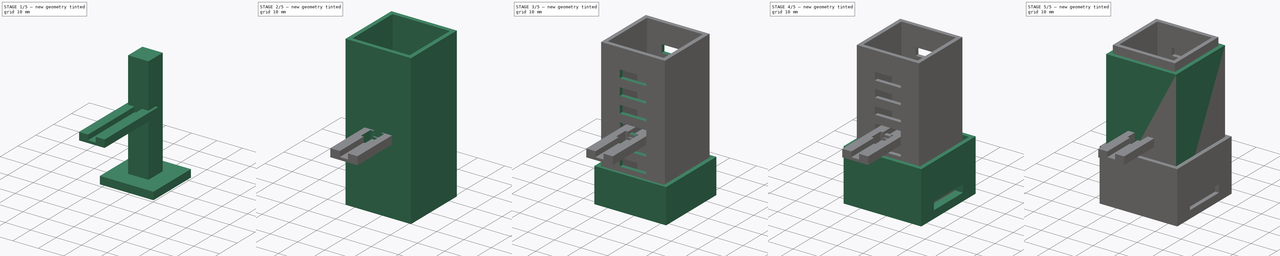
[diagram: build sequence overview — one tinted view per stage of 5, left to right]
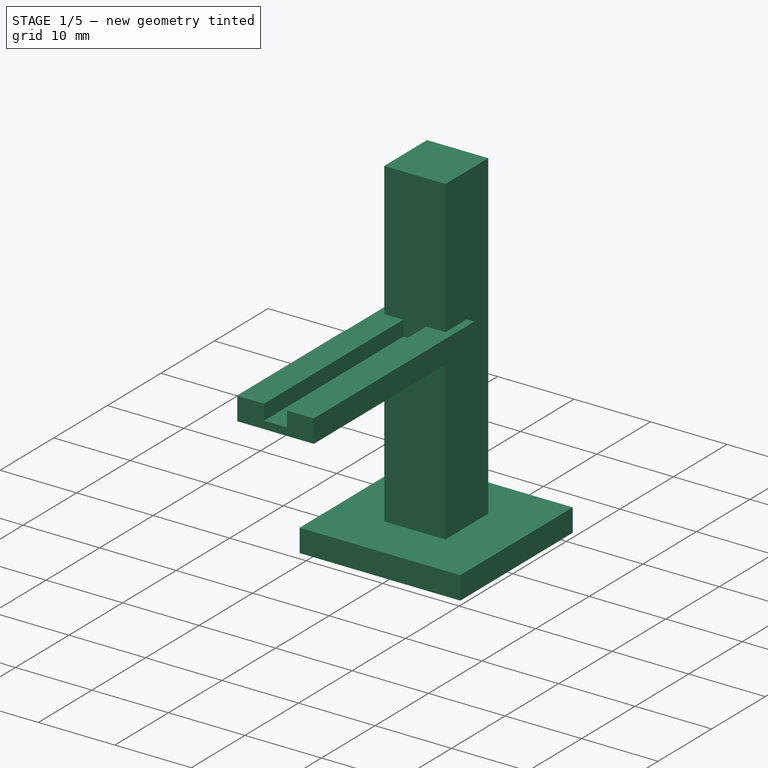
[diagram: stage 1 of 5 — iso view after this stage's code; geometry added in this stage tinted green]
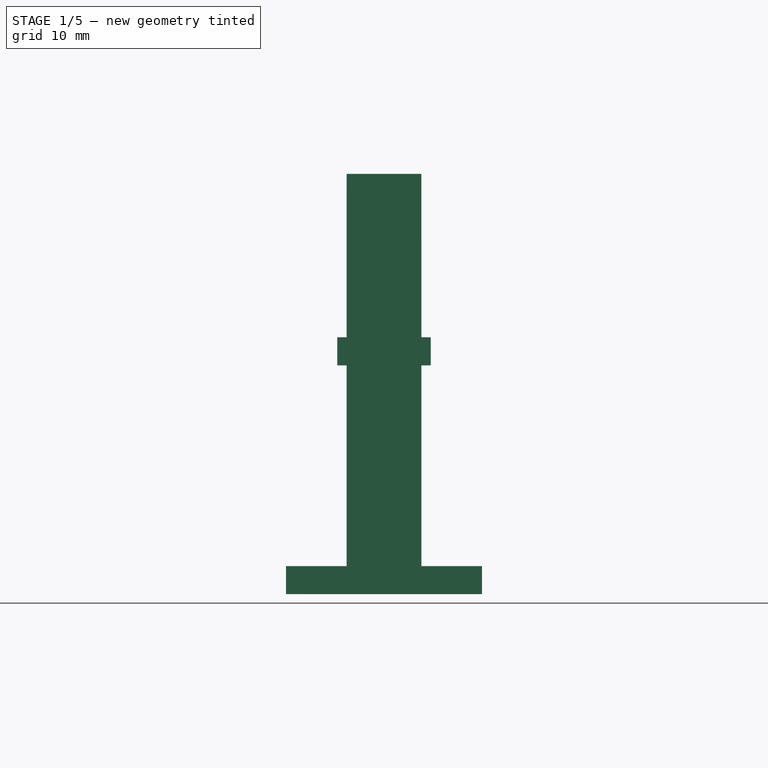
[diagram: stage 1 of 5 — front view after this stage's code; geometry added in this stage tinted green]
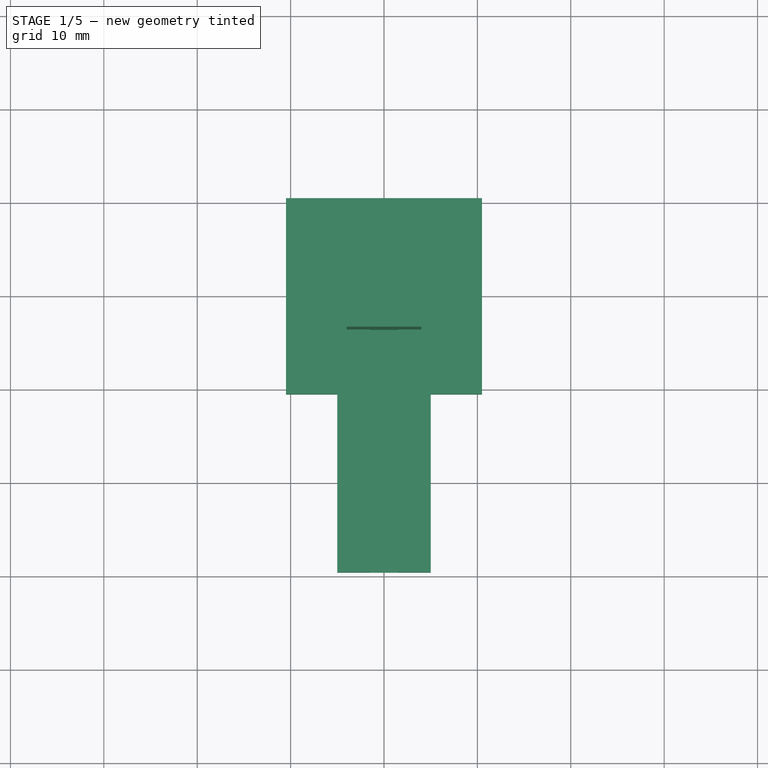
[diagram: stage 1 of 5 — top view after this stage's code; geometry added in this stage tinted green]
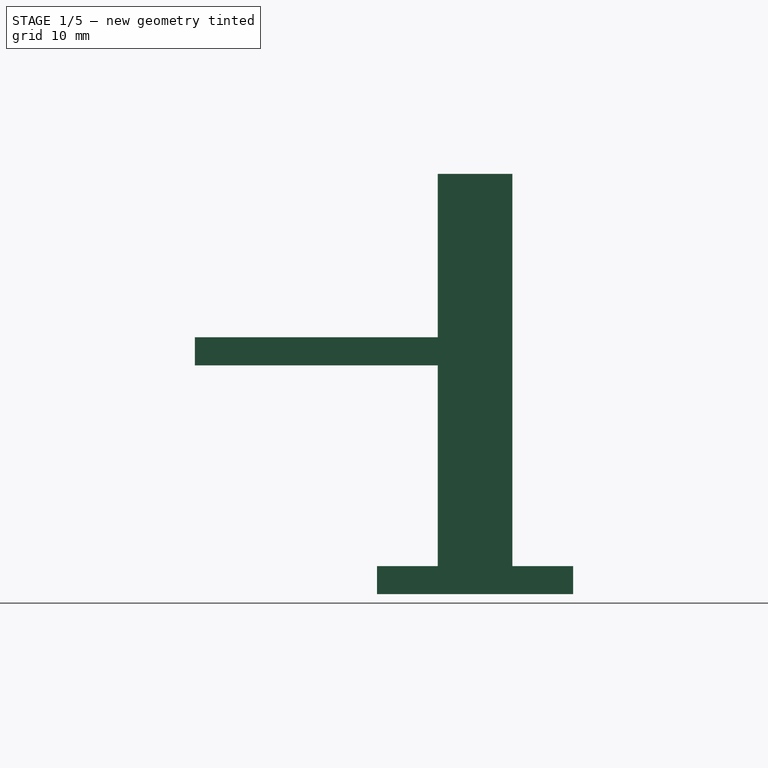
[diagram: stage 1 of 5 — right view after this stage's code; geometry added in this stage tinted green]
FCSTD DOCUMENT  (FreeCAD 0.21R33668 +26 (Git))
Label: gehäuse
License: All rights reserved
LicenseURL: http://en.wikipedia.org/wiki/All_rights_reserved
objects: Sketcher::SketchObject×14, PartDesign::Pad×11, PartDesign::Body×5, PartDesign::Pocket×3, PartDesign::LinearPattern×1
note: 48 computed .brp shape members not serialized (recipe doc carries the construction recipe); baked Part::Feature solids carry a one-line shape summary decoded from their .brp

FEATURE [PartDesign::Body] Body002  label="Raster"
  Group = -> [Sketch007,Pad006,Sketch008,Pad007,Sketch009,Pocket001,LinearPattern]
  Origin = -> Origin002
  Placement = pos=(0,0,20.5) rot=(0,0,1;0rad)
  Tip = -> LinearPattern
FEATURE [Sketcher::SketchObject] Sketch010
  FullyConstrained = true
  MapMode = 5
  Placement = pos=(0,0,0) rot=(1,0,0;1.5708rad)
  Support = -> [XZ_Plane003]
  sketch-geometry (10):
    g0: LineSegment StartX=-5 StartY=24.5 StartZ=0 EndX=-5 EndY=27.5 EndZ=0
    g1: LineSegment StartX=5 StartY=27.5 StartZ=0 EndX=5 EndY=24.5 EndZ=0
    g2: LineSegment StartX=5 StartY=24.5 StartZ=0 EndX=-5 EndY=24.5 EndZ=0
    g3: GeomPoint X=0 Y=26 Z=0
    g4: LineSegment StartX=-1.5 StartY=25.5 StartZ=0 EndX=-1.5 EndY=27.5 EndZ=0
    g5: LineSegment StartX=1.5 StartY=27.5 StartZ=0 EndX=1.5 EndY=25.5 EndZ=0
    g6: LineSegment StartX=1.5 StartY=25.5 StartZ=0 EndX=-1.5 EndY=25.5 EndZ=0
    g7: GeomPoint X=0 Y=26.5 Z=0
    g8: LineSegment StartX=-5 StartY=27.5 StartZ=0 EndX=-1.5 EndY=27.5 EndZ=0
    g9: LineSegment StartX=1.5 StartY=27.5 StartZ=0 EndX=5 EndY=27.5 EndZ=0
  constraints (27):
    c: Coincident(g1,g2)
    c: Coincident(g2,g0)
    c: Horizontal(g2)
    c: Vertical(g0)
    c: Vertical(g1)
    c: Symmetric(g1,g0,g3)
    c: PointOnObject(g3,g-2)
    c: DistanceX(g0,g1) = 10
    c: DistanceY(g1,g1) = 3
    c: Distance(g-1,g3) = 26
    c: Coincident(g5,g6)
    c: Coincident(g6,g4)
    c: Horizontal(g6)
    c: Vertical(g4)
    c: Vertical(g5)
    c: Symmetric(g5,g4,g7)
    c: PointOnObject(g7,g-2)
    c: Coincident(g8,g0)
    c: Coincident(g8,g4)
    c: Horizontal(g8)
    c: Coincident(g9,g1)
    c: Horizontal(g9)
    c: DistanceY(g4,g4) = 2
    c: DistanceX(g6,g6) = 3
    c: DistanceX(g9,g9) = 3.5
    c: DistanceY(g0,g0) = 3
    c: DistanceY(g5,g5) = 2
FEATURE [PartDesign::Pad] Pad008
  Direction = (0,-1,2e-16)
  Length = 30
  Length2 = 10
  Placement = pos=(0,0,0) rot=(1,0,0;1.5708rad)
  Profile = -> Sketch010
  ReferenceAxis = -> Sketch010 [N_Axis]
  Type = 0
FEATURE [PartDesign::Body] Body003  label="stift"
  Group = -> [Sketch010,Pad008,Sketch012,Pocket002]
  Origin = -> Origin003
  Placement = pos=(0,15,40.5) rot=(0,0,1;0rad)
  Tip = -> Pocket002
FEATURE [Sketcher::SketchObject] Sketch013
  FullyConstrained = true
  MapMode = 5
  Support = -> [XY_Plane004]
  sketch-geometry (5):
    g0: LineSegment StartX=-10.5 StartY=-10.5 StartZ=0 EndX=-10.5 EndY=10.5 EndZ=0
    g1: LineSegment StartX=-10.5 StartY=10.5 StartZ=0 EndX=10.5 EndY=10.5 EndZ=0
    g2: LineSegment StartX=10.5 StartY=10.5 StartZ=0 EndX=10.5 EndY=-10.5 EndZ=0
    g3: LineSegment StartX=10.5 StartY=-10.5 StartZ=0 EndX=-10.5 EndY=-10.5 EndZ=0
    g4: GeomPoint X=0 Y=0 Z=0
  constraints (12):
    c: Coincident(g0,g1)
    c: Coincident(g1,g2)
    c: Coincident(g2,g3)
    c: Coincident(g3,g0)
    c: Horizontal(g1)
    c: Horizontal(g3)
    c: Vertical(g0)
    c: Vertical(g2)
    c: Symmetric(g1,g0,g4)
    c: Coincident(g4,g-1)
    c: DistanceY(g0,g0) = 21
    c: DistanceX(g1,g1) = 21
FEATURE [PartDesign::Pad] Pad009
  Direction = (0,0,1)
  Length = 3
  Length2 = 10
  Profile = -> Sketch013
  ReferenceAxis = -> Sketch013 [N_Axis]
  Type = 0
FEATURE [Sketcher::SketchObject] Sketch014
  FullyConstrained = true
  MapMode = 5
  Support = -> [XY_Plane004]
  sketch-geometry (5):
    g0: LineSegment StartX=-4 StartY=-4 StartZ=0 EndX=-4 EndY=4 EndZ=0
    g1: LineSegment StartX=-4 StartY=4 StartZ=0 EndX=4 EndY=4 EndZ=0
    g2: LineSegment StartX=4 StartY=4 StartZ=0 EndX=4 EndY=-4 EndZ=0
    g3: LineSegment StartX=4 StartY=-4 StartZ=0 EndX=-4 EndY=-4 EndZ=0
    g4: GeomPoint X=0 Y=0 Z=0
  constraints (12):
    c: Coincident(g0,g1)
    c: Coincident(g1,g2)
    c: Coincident(g2,g3)
    c: Coincident(g3,g0)
    c: Horizontal(g1)
    c: Horizontal(g3)
    c: Vertical(g0)
    c: Vertical(g2)
    c: Symmetric(g1,g0,g4)
    c: Coincident(g4,g-1)
    c: DistanceY(g2,g2) = 8
    c: DistanceX(g1,g1) = 8
FEATURE [PartDesign::Pad] Pad010
  BaseFeature = -> Pad009
  Direction = (0,0,1)
  Length = 45
  Length2 = 10
  Profile = -> Sketch014
  ReferenceAxis = -> Sketch014 [N_Axis]
  Type = 0
FEATURE [PartDesign::Body] Body004  label="Deckel"
  Group = -> [Sketch013,Pad009,Sketch014,Pad010]
  Origin = -> Origin004
  Placement = pos=(0,0,68) rot=(0,0,1;0rad)
  Tip = -> Pad010
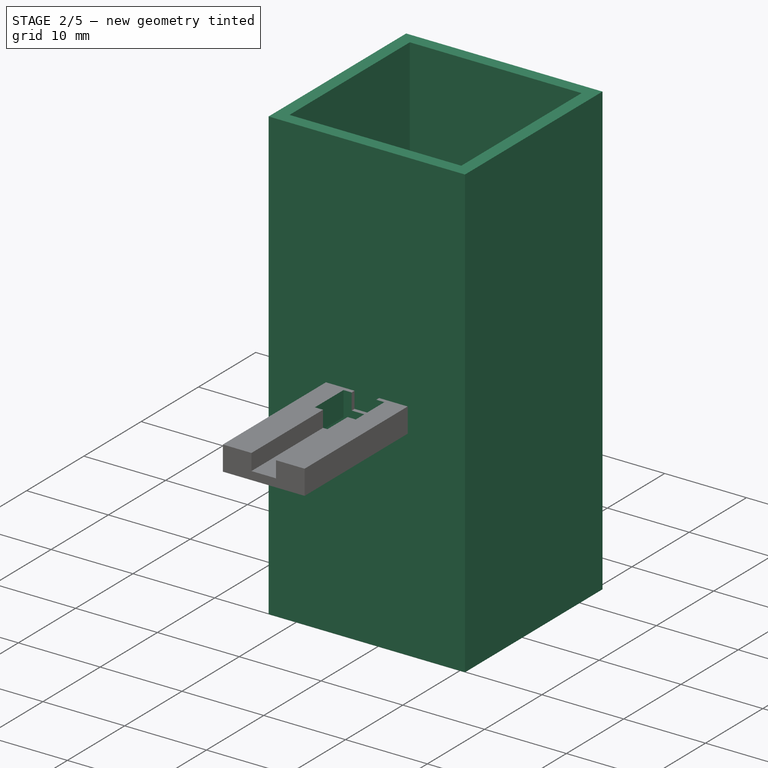
[diagram: stage 2 of 5 — iso view after this stage's code; geometry added in this stage tinted green]
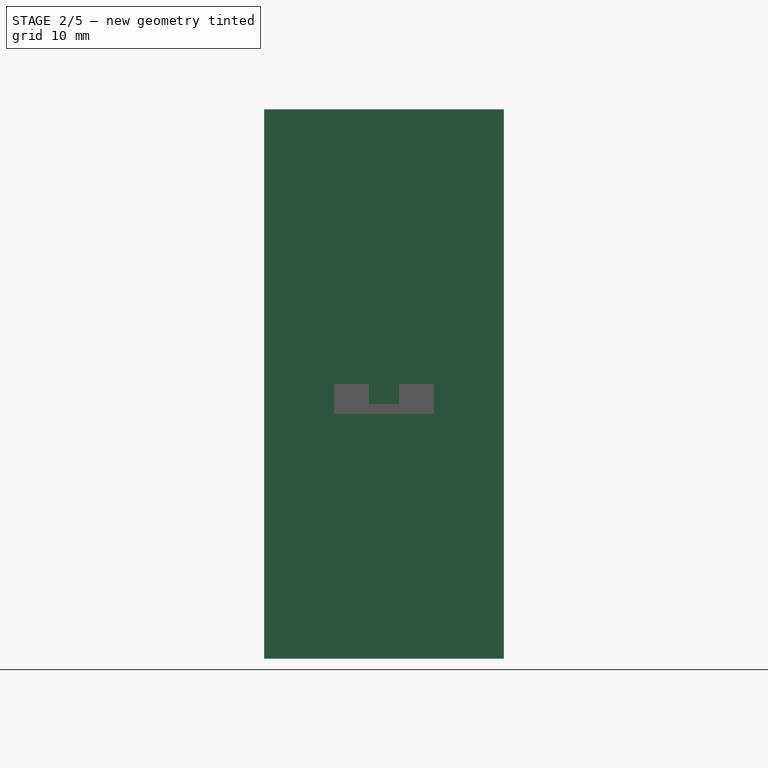
[diagram: stage 2 of 5 — front view after this stage's code; geometry added in this stage tinted green]
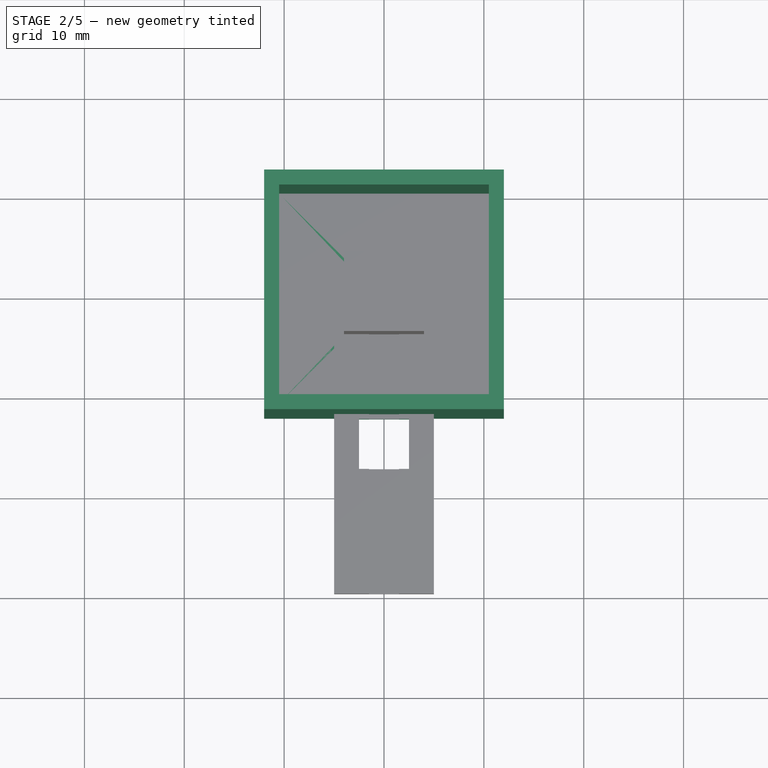
[diagram: stage 2 of 5 — top view after this stage's code; geometry added in this stage tinted green]
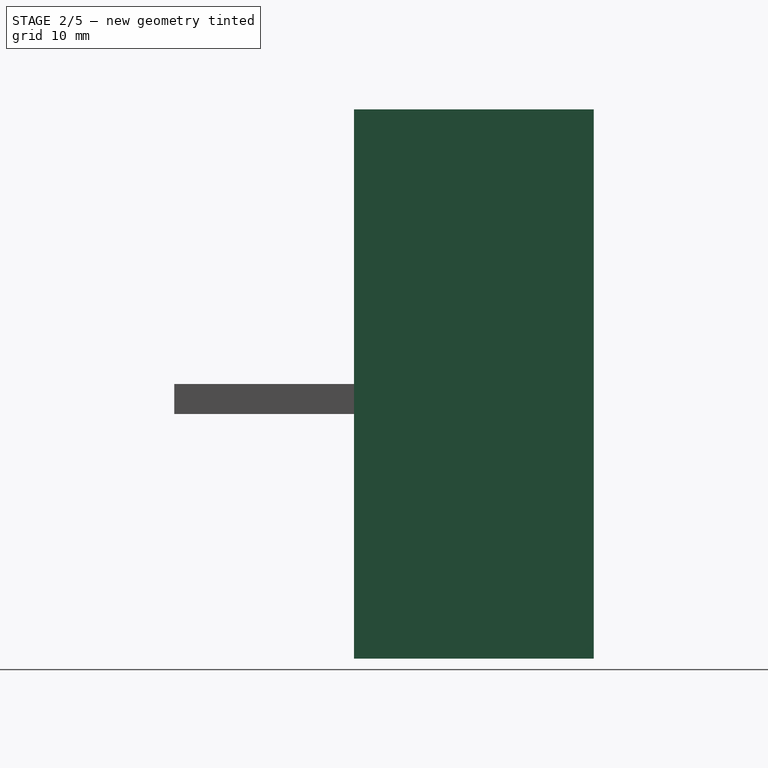
[diagram: stage 2 of 5 — right view after this stage's code; geometry added in this stage tinted green]
FEATURE [PartDesign::Body] Body  label="Boden"
  Group = -> [Sketch,Sketch001,Pad,Pad001,Sketch002,Pad002,Sketch003,Pocket,Sketch006,Pad005]
  Origin = -> Origin
  Tip = -> Pad005
FEATURE [Sketcher::SketchObject] Sketch007
  FullyConstrained = true
  MapMode = 5
  Support = -> [XY_Plane002]
  sketch-geometry (6):
    g0: LineSegment StartX=-10.5 StartY=-10.5 StartZ=0 EndX=-10.5 EndY=10.5 EndZ=0
    g1: LineSegment StartX=-10.5 StartY=10.5 StartZ=0 EndX=10.5 EndY=10.5 EndZ=0
    g2: LineSegment StartX=10.5 StartY=10.5 StartZ=0 EndX=10.5 EndY=-10.5 EndZ=0
    g3: LineSegment StartX=10.5 StartY=-10.5 StartZ=0 EndX=-10.5 EndY=-10.5 EndZ=0
    g4: GeomPoint X=0 Y=0 Z=0
    g5: Circle CenterX=2 CenterY=0 CenterZ=0 NormalX=0 NormalY=0 NormalZ=1 AngleXU=0 Radius=2.5
  constraints (15):
    c: Coincident(g0,g1)
    c: Coincident(g1,g2)
    c: Coincident(g2,g3)
    c: Coincident(g3,g0)
    c: Horizontal(g1)
    c: Horizontal(g3)
    c: Vertical(g0)
    c: Vertical(g2)
    c: Symmetric(g1,g0,g4)
    c: Coincident(g4,g-1)
    c: DistanceX(g1,g1) = 21
    c: DistanceY(g2,g2) = 21
    c: PointOnObject(g5,g-1)
    c: Diameter(g5) = 5
    c: Distance(g4,g5) = 2
FEATURE [PartDesign::Pad] Pad006
  Direction = (0,0,1)
  Length = 3
  Length2 = 10
  Profile = -> Sketch007
  ReferenceAxis = -> Sketch007 [N_Axis]
  Type = 0
FEATURE [Sketcher::SketchObject] Sketch008
  FullyConstrained = true
  MapMode = 5
  Support = -> [XY_Plane002]
  sketch-geometry (10):
    g0: LineSegment StartX=-10.5 StartY=-10.5 StartZ=0 EndX=-10.5 EndY=10.5 EndZ=0
    g1: LineSegment StartX=-10.5 StartY=10.5 StartZ=0 EndX=10.5 EndY=10.5 EndZ=0
    g2: LineSegment StartX=10.5 StartY=10.5 StartZ=0 EndX=10.5 EndY=-10.5 EndZ=0
    g3: LineSegment StartX=10.5 StartY=-10.5 StartZ=0 EndX=-10.5 EndY=-10.5 EndZ=0
    g4: GeomPoint X=0 Y=0 Z=0
    g5: LineSegment StartX=-12 StartY=-12 StartZ=0 EndX=-12 EndY=12 EndZ=0
    g6: LineSegment StartX=-12 StartY=12 StartZ=0 EndX=12 EndY=12 EndZ=0
    g7: LineSegment StartX=12 StartY=12 StartZ=0 EndX=12 EndY=-12 EndZ=0
    g8: LineSegment StartX=12 StartY=-12 StartZ=0 EndX=-12 EndY=-12 EndZ=0
    g9: GeomPoint X=0 Y=0 Z=0
  constraints (24):
    c: Coincident(g0,g1)
    c: Coincident(g1,g2)
    c: Coincident(g2,g3)
    c: Coincident(g3,g0)
    c: Horizontal(g1)
    c: Horizontal(g3)
    c: Vertical(g0)
    c: Vertical(g2)
    c: Symmetric(g1,g0,g4)
    c: Coincident(g4,g-1)
    c: DistanceX(g1,g1) = 21
    c: DistanceY(g2,g2) = 21
    c: Coincident(g5,g6)
    c: Coincident(g6,g7)
    c: Coincident(g7,g8)
    c: Coincident(g8,g5)
    c: Horizontal(g6)
    c: Horizontal(g8)
    c: Vertical(g5)
    c: Vertical(g7)
    c: Symmetric(g6,g5,g9)
    c: Coincident(g9,g4)
    c: DistanceY(g5,g5) = 24
    c: DistanceX(g6,g6) = 24
FEATURE [PartDesign::Pad] Pad007
  BaseFeature = -> Pad006
  Direction = (0,0,1)
  Length = 55
  Length2 = 10
  Profile = -> Sketch008
  ReferenceAxis = -> Sketch008 [N_Axis]
  Type = 0
FEATURE [Sketcher::SketchObject] Sketch012
  FullyConstrained = true
  MapMode = 5
  Support = -> [XY_Plane003]
  sketch-geometry (5):
    g0: LineSegment StartX=-2.5 StartY=-17.5 StartZ=0 EndX=-2.5 EndY=-12.5 EndZ=0
    g1: LineSegment StartX=-2.5 StartY=-12.5 StartZ=0 EndX=2.5 EndY=-12.5 EndZ=0
    g2: LineSegment StartX=2.5 StartY=-12.5 StartZ=0 EndX=2.5 EndY=-17.5 EndZ=0
    g3: LineSegment StartX=2.5 StartY=-17.5 StartZ=0 EndX=-2.5 EndY=-17.5 EndZ=0
    g4: GeomPoint X=0 Y=-15 Z=0
  constraints (13):
    c: Coincident(g0,g1)
    c: Coincident(g1,g2)
    c: Coincident(g2,g3)
    c: Coincident(g3,g0)
    c: Horizontal(g1)
    c: Horizontal(g3)
    c: Vertical(g0)
    c: Vertical(g2)
    c: Symmetric(g1,g0,g4)
    c: PointOnObject(g4,g-2)
    c: DistanceX(g1,g1) = 5
    c: DistanceY(g0,g0) = 5
    c: Distance(g-1,g4) = 15
FEATURE [PartDesign::Pocket] Pocket002
  BaseFeature = -> Pad008
  Direction = (0,0,-1)
  Length = 30
  Length2 = 50
  Placement = pos=(0,0,0) rot=(1,0,0;1.5708rad)
  Profile = -> Sketch012
  ReferenceAxis = -> Sketch012 [N_Axis]
  Reversed = true
  Type = 0
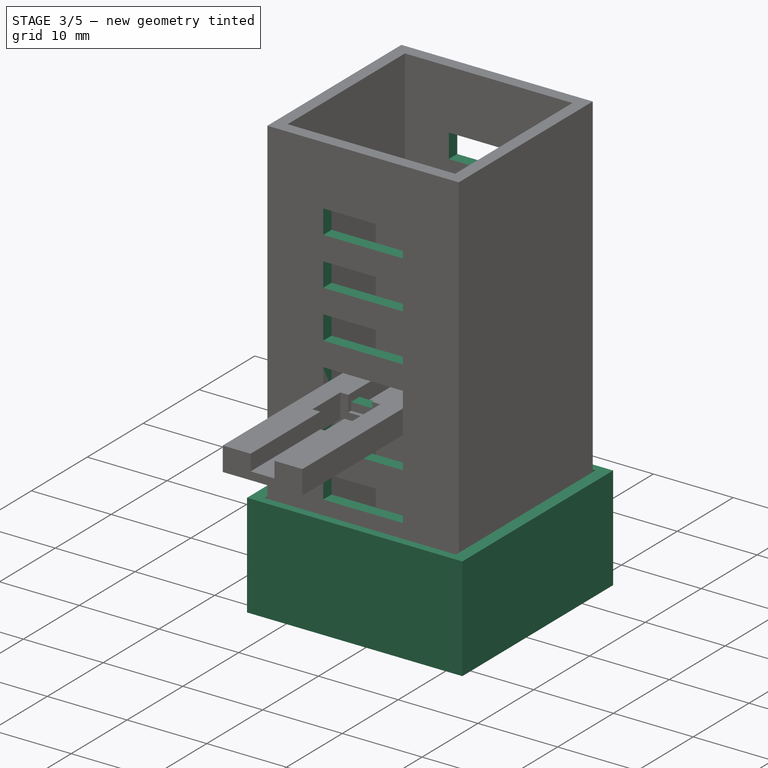
[diagram: stage 3 of 5 — iso view after this stage's code; geometry added in this stage tinted green]
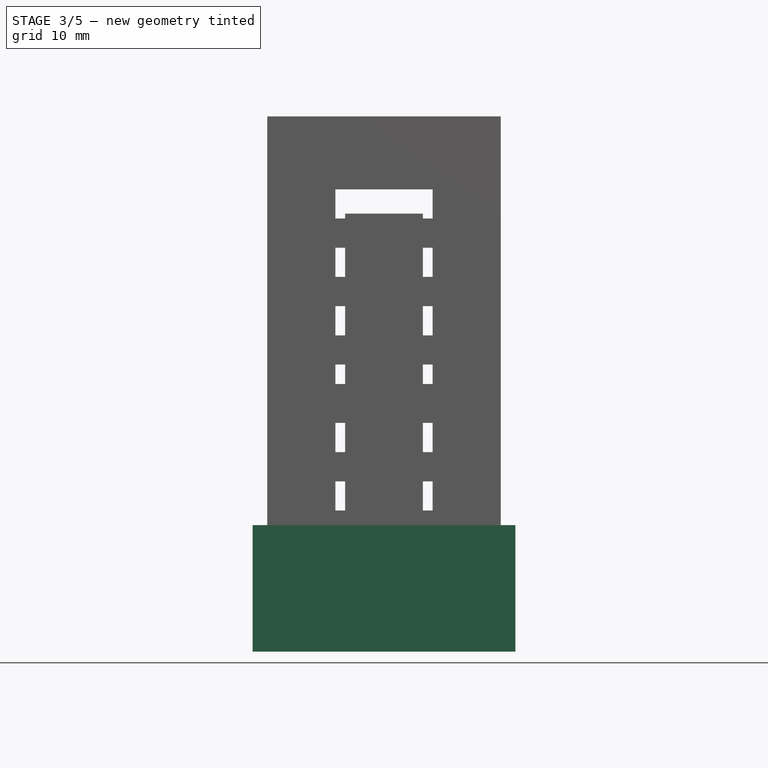
[diagram: stage 3 of 5 — front view after this stage's code; geometry added in this stage tinted green]
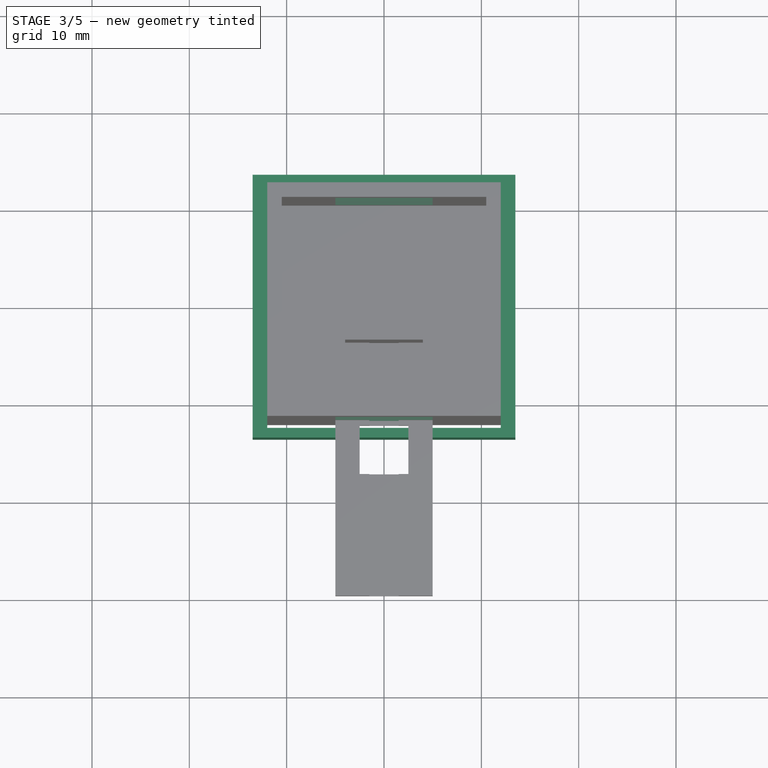
[diagram: stage 3 of 5 — top view after this stage's code; geometry added in this stage tinted green]
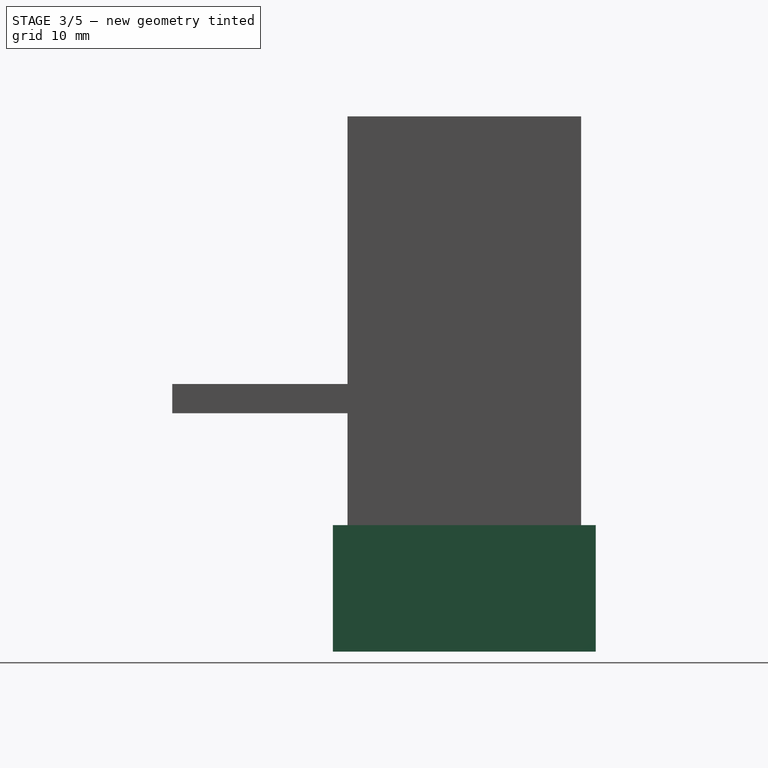
[diagram: stage 3 of 5 — right view after this stage's code; geometry added in this stage tinted green]
FEATURE [Sketcher::SketchObject] Sketch
  FullyConstrained = true
  MapMode = 5
  Support = -> [XY_Plane]
  sketch-geometry (5):
    g0: LineSegment StartX=12 StartY=12 StartZ=0 EndX=12 EndY=-12 EndZ=0
    g1: LineSegment StartX=12 StartY=-12 StartZ=0 EndX=-12 EndY=-12 EndZ=0
    g2: LineSegment StartX=-12 StartY=-12 StartZ=0 EndX=-12 EndY=12 EndZ=0
    g3: LineSegment StartX=-12 StartY=12 StartZ=0 EndX=12 EndY=12 EndZ=0
    g4: GeomPoint X=0 Y=0 Z=0
  constraints (12):
    c: Coincident(g0,g1)
    c: Coincident(g1,g2)
    c: Coincident(g2,g3)
    c: Coincident(g3,g0)
    c: Horizontal(g1)
    c: Horizontal(g3)
    c: Vertical(g0)
    c: Vertical(g2)
    c: Symmetric(g1,g0,g4)
    c: Coincident(g4,g-1)
    c: DistanceX(g1,g1) = 24
    c: DistanceY(g2,g2) = 24
FEATURE [Sketcher::SketchObject] Sketch001
  FullyConstrained = true
  MapMode = 5
  Support = -> [XY_Plane]
  sketch-geometry (10):
    g0: LineSegment StartX=-13.5 StartY=-13.5 StartZ=0 EndX=-13.5 EndY=13.5 EndZ=0
    g1: LineSegment StartX=-13.5 StartY=13.5 StartZ=0 EndX=13.5 EndY=13.5 EndZ=0
    g2: LineSegment StartX=13.5 StartY=13.5 StartZ=0 EndX=13.5 EndY=-13.5 EndZ=0
    g3: LineSegment StartX=13.5 StartY=-13.5 StartZ=0 EndX=-13.5 EndY=-13.5 EndZ=0
    g4: GeomPoint X=0 Y=0 Z=0
    g5: LineSegment StartX=-12 StartY=-12.5 StartZ=0 EndX=-12 EndY=12.5 EndZ=0
    g6: LineSegment StartX=-12 StartY=12.5 StartZ=0 EndX=12 EndY=12.5 EndZ=0
    g7: LineSegment StartX=12 StartY=12.5 StartZ=0 EndX=12 EndY=-12.5 EndZ=0
    g8: LineSegment StartX=12 StartY=-12.5 StartZ=0 EndX=-12 EndY=-12.5 EndZ=0
    g9: GeomPoint X=0 Y=0 Z=0
  constraints (24):
    c: Coincident(g0,g1)
    c: Coincident(g1,g2)
    c: Coincident(g2,g3)
    c: Coincident(g3,g0)
    c: Horizontal(g1)
    c: Horizontal(g3)
    c: Vertical(g0)
    c: Vertical(g2)
    c: Symmetric(g1,g0,g4)
    c: Coincident(g4,g-1)
    c: DistanceY(g2,g2) = 27
    c: DistanceX(g1,g1) = 27
    c: Coincident(g5,g6)
    c: Coincident(g6,g7)
    c: Coincident(g7,g8)
    c: Coincident(g8,g5)
    c: Horizontal(g6)
    c: Horizontal(g8)
    c: Vertical(g5)
    c: Vertical(g7)
    c: Symmetric(g6,g5,g9)
    c: Coincident(g9,g4)
    c: DistanceX(g6,g6) = 24
    c: DistanceY(g7,g7) = 25
FEATURE [PartDesign::Pad] Pad
  Direction = (0,0,1)
  Length = 13
  Length2 = 10
  Profile = -> Sketch001
  ReferenceAxis = -> Sketch001 [N_Axis]
  Type = 0
FEATURE [Sketcher::SketchObject] Sketch009
  FullyConstrained = true
  MapMode = 5
  Placement = pos=(0,0,0) rot=(1,0,0;1.5708rad)
  Support = -> [XZ_Plane002]
  sketch-geometry (5):
    g0: LineSegment StartX=-5 StartY=8.5 StartZ=0 EndX=-5 EndY=11.5 EndZ=0
    g1: LineSegment StartX=-5 StartY=11.5 StartZ=0 EndX=5 EndY=11.5 EndZ=0
    g2: LineSegment StartX=5 StartY=11.5 StartZ=0 EndX=5 EndY=8.5 EndZ=0
    g3: LineSegment StartX=5 StartY=8.5 StartZ=0 EndX=-5 EndY=8.5 EndZ=0
    g4: GeomPoint X=0 Y=10 Z=0
  constraints (13):
    c: Coincident(g0,g1)
    c: Coincident(g1,g2)
    c: Coincident(g2,g3)
    c: Coincident(g3,g0)
    c: Horizontal(g1)
    c: Horizontal(g3)
    c: Vertical(g0)
    c: Vertical(g2)
    c: Symmetric(g1,g0,g4)
    c: PointOnObject(g4,g-2)
    c: Distance(g-1,g4) = 10
    c: DistanceY(g2,g2) = 3
    c: DistanceX(g1,g1) = 10
FEATURE [PartDesign::Pocket] Pocket001
  BaseFeature = -> Pad007
  Direction = (0,1,-2e-16)
  Length = 20
  Length2 = 20
  Profile = -> Sketch009
  ReferenceAxis = -> Sketch009 [N_Axis]
  Type = 4
FEATURE [PartDesign::LinearPattern] LinearPattern
  BaseFeature = -> Pocket001
  Direction = -> Sketch009 [V_Axis]
  Length = 36
  Occurrences = 7
  Originals = -> [Pocket001]
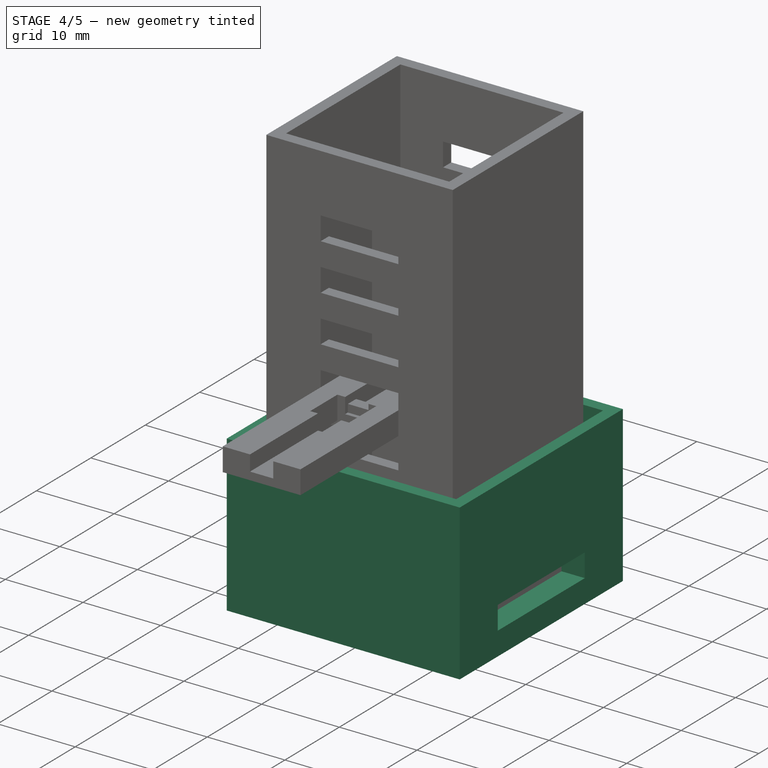
[diagram: stage 4 of 5 — iso view after this stage's code; geometry added in this stage tinted green]
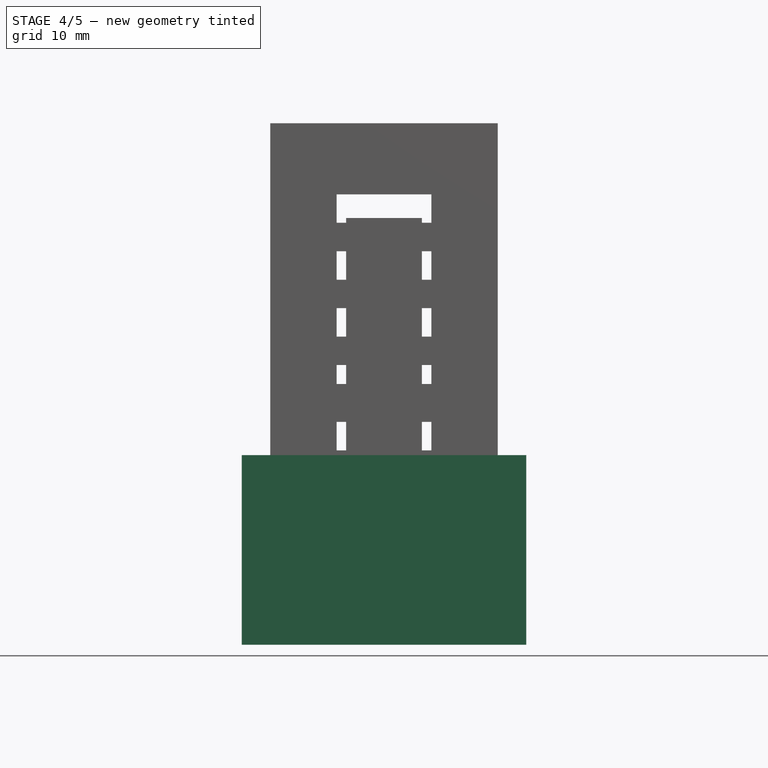
[diagram: stage 4 of 5 — front view after this stage's code; geometry added in this stage tinted green]
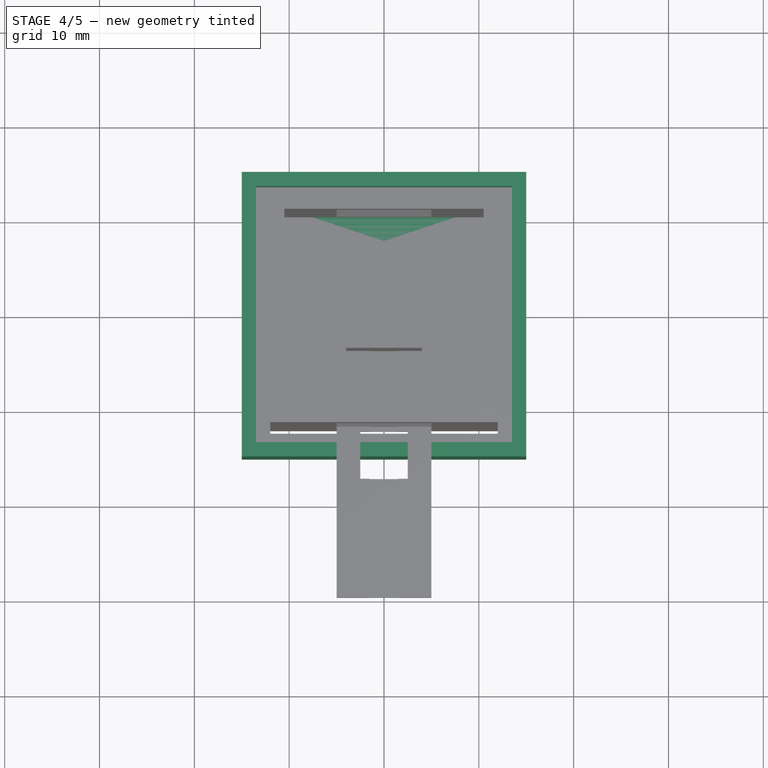
[diagram: stage 4 of 5 — top view after this stage's code; geometry added in this stage tinted green]
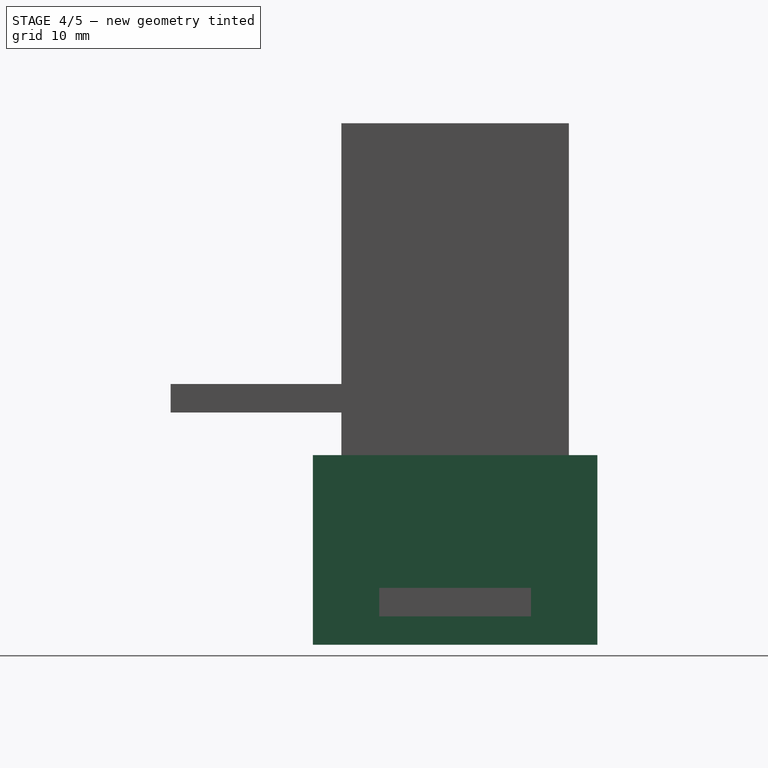
[diagram: stage 4 of 5 — right view after this stage's code; geometry added in this stage tinted green]
FEATURE [PartDesign::Pad] Pad001
  BaseFeature = -> Pad
  Direction = (0,0,1)
  Length = 3
  Length2 = 10
  Profile = -> Sketch
  ReferenceAxis = -> Sketch [N_Axis]
  Type = 0
FEATURE [Sketcher::SketchObject] Sketch002
  FullyConstrained = true
  MapMode = 5
  Support = -> [XY_Plane]
  sketch-geometry (10):
    g0: LineSegment StartX=-13.5 StartY=-13.5 StartZ=0 EndX=-13.5 EndY=13.5 EndZ=0
    g1: LineSegment StartX=-13.5 StartY=13.5 StartZ=0 EndX=13.5 EndY=13.5 EndZ=0
    g2: LineSegment StartX=13.5 StartY=13.5 StartZ=0 EndX=13.5 EndY=-13.5 EndZ=0
    g3: LineSegment StartX=13.5 StartY=-13.5 StartZ=0 EndX=-13.5 EndY=-13.5 EndZ=0
    g4: GeomPoint X=0 Y=-3e-16 Z=0
    g5: LineSegment StartX=-15 StartY=-15 StartZ=0 EndX=-15 EndY=15 EndZ=0
    g6: LineSegment StartX=-15 StartY=15 StartZ=0 EndX=15 EndY=15 EndZ=0
    g7: LineSegment StartX=15 StartY=15 StartZ=0 EndX=15 EndY=-15 EndZ=0
    g8: LineSegment StartX=15 StartY=-15 StartZ=0 EndX=-15 EndY=-15 EndZ=0
    g9: GeomPoint X=0 Y=-3e-16 Z=0
  constraints (24):
    c: Coincident(g0,g1)
    c: Coincident(g1,g2)
    c: Coincident(g2,g3)
    c: Coincident(g3,g0)
    c: Horizontal(g1)
    c: Horizontal(g3)
    c: Vertical(g0)
    c: Vertical(g2)
    c: Symmetric(g1,g0,g4)
    c: Coincident(g4,g-1)
    c: DistanceX(g1,g1) = 27
    c: DistanceY(g2,g2) = 27
    c: Coincident(g5,g6)
    c: Coincident(g6,g7)
    c: Coincident(g7,g8)
    c: Coincident(g8,g5)
    c: Horizontal(g6)
    c: Horizontal(g8)
    c: Vertical(g5)
    c: Vertical(g7)
    c: Symmetric(g6,g5,g9)
    c: Coincident(g9,g4)
    c: DistanceX(g6,g6) = 30
    c: DistanceY(g7,g7) = 30
FEATURE [PartDesign::Pad] Pad002
  BaseFeature = -> Pad001
  Direction = (0,0,1)
  Length = 20
  Length2 = 10
  Profile = -> Sketch002
  ReferenceAxis = -> Sketch002 [N_Axis]
  Type = 0
FEATURE [Sketcher::SketchObject] Sketch003
  FullyConstrained = true
  MapMode = 5
  Placement = pos=(0,0,0) rot=(0.57735,0.57735,0.57735;2.0944rad)
  Support = -> [YZ_Plane]
  sketch-geometry (4):
    g0: LineSegment StartX=-8 StartY=6 StartZ=0 EndX=8 EndY=6 EndZ=0
    g1: LineSegment StartX=8 StartY=6 StartZ=0 EndX=8 EndY=3 EndZ=0
    g2: LineSegment StartX=8 StartY=3 StartZ=0 EndX=-8 EndY=3 EndZ=0
    g3: LineSegment StartX=-8 StartY=3 StartZ=0 EndX=-8 EndY=6 EndZ=0
  constraints (12):
    c: Coincident(g0,g1)
    c: Coincident(g1,g2)
    c: Coincident(g2,g3)
    c: Coincident(g3,g0)
    c: Horizontal(g0)
    c: Horizontal(g2)
    c: Vertical(g1)
    c: Vertical(g3)
    c: DistanceX(g0,g0) = 16
    c: DistanceY(g1,g1) = 3
    c: Distance(g-1,g2) = 3
    c: Distance(g1,g-2) = 8
FEATURE [PartDesign::Pocket] Pocket
  BaseFeature = -> Pad002
  Direction = (1,0,0)
  Length = 5
  Length2 = 5
  Profile = -> Sketch003
  ReferenceAxis = -> Sketch003 [N_Axis]
  Type = 1
  UseCustomVector = true
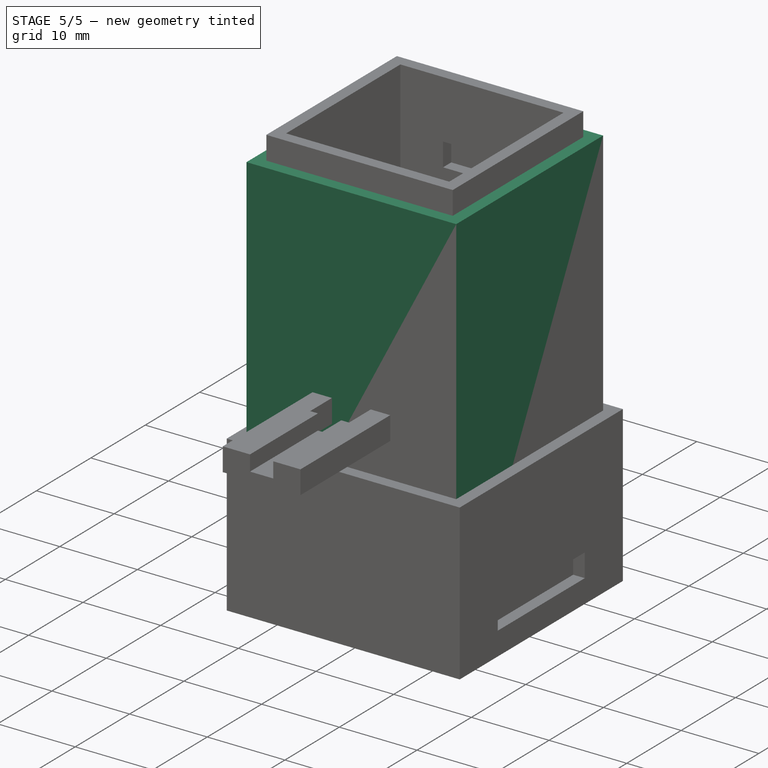
[diagram: stage 5 of 5 — iso view after this stage's code; geometry added in this stage tinted green]
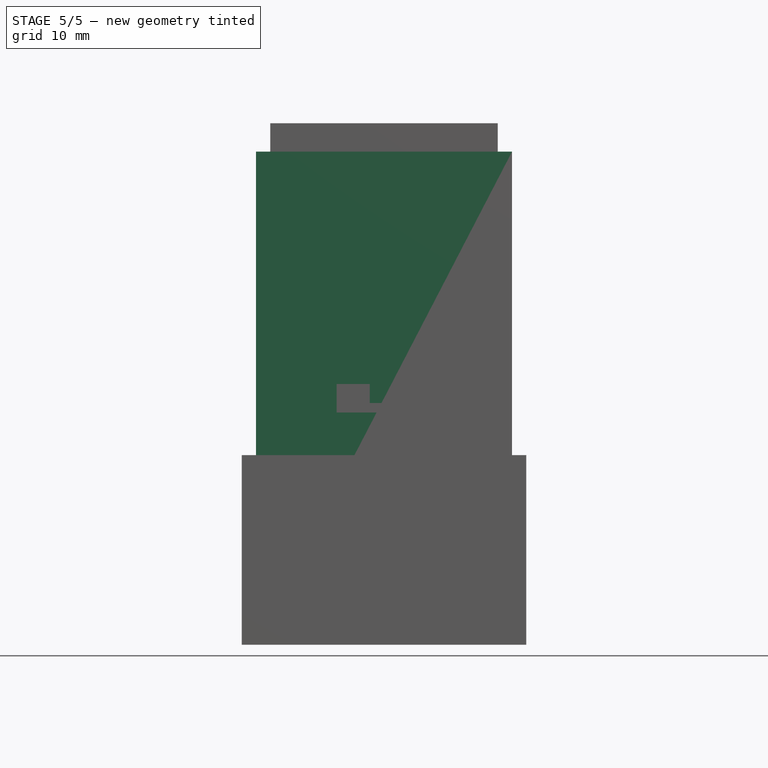
[diagram: stage 5 of 5 — front view after this stage's code; geometry added in this stage tinted green]
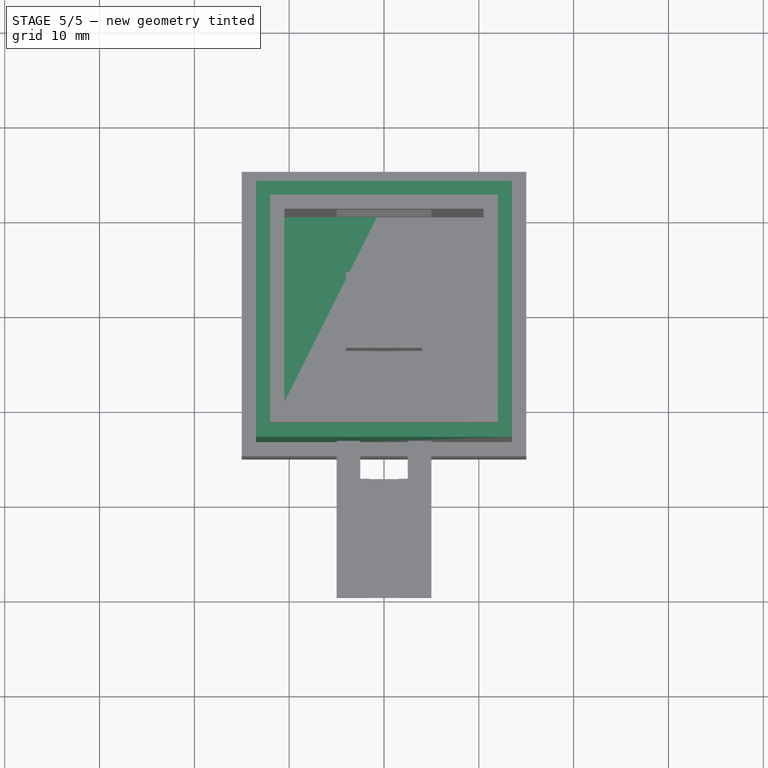
[diagram: stage 5 of 5 — top view after this stage's code; geometry added in this stage tinted green]
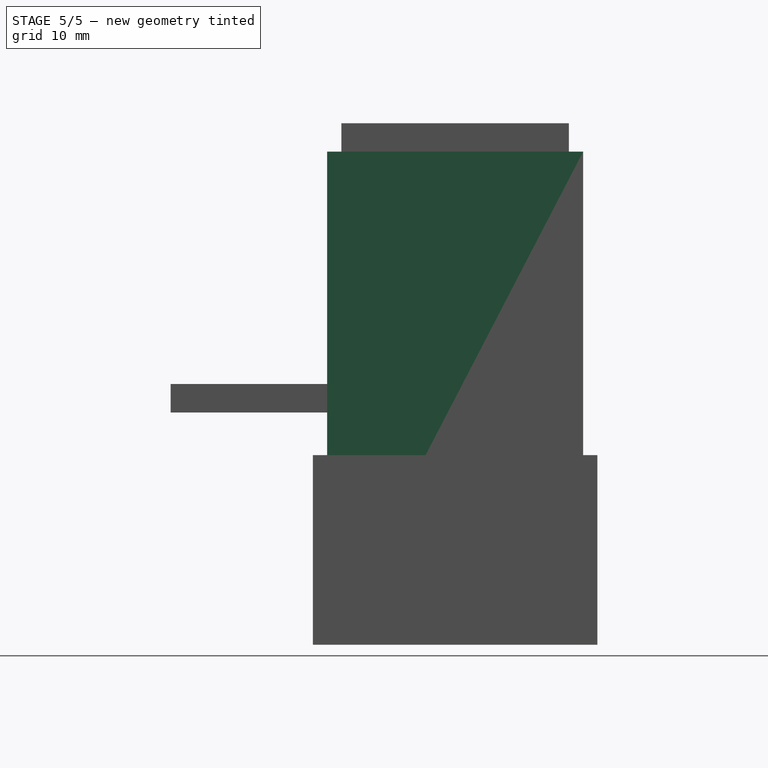
[diagram: stage 5 of 5 — right view after this stage's code; geometry added in this stage tinted green]
FEATURE [Sketcher::SketchObject] Sketch004
  FullyConstrained = false
  MapMode = 5
  Support = -> [XY_Plane001]
  sketch-geometry (10):
    g0: LineSegment StartX=-12 StartY=-12 StartZ=0 EndX=-12 EndY=12 EndZ=0
    g1: LineSegment StartX=-12 StartY=12 StartZ=0 EndX=12 EndY=12 EndZ=0
    g2: LineSegment StartX=12 StartY=12 StartZ=0 EndX=12 EndY=-12 EndZ=0
    g3: LineSegment StartX=12 StartY=-12 StartZ=0 EndX=-12 EndY=-12 EndZ=0
    g4: GeomPoint X=0 Y=0 Z=0
    g5: LineSegment StartX=-4 StartY=-2 StartZ=0 EndX=-4 EndY=6 EndZ=0
    g6: LineSegment StartX=-4 StartY=6 StartZ=0 EndX=4 EndY=6 EndZ=0
    g7: LineSegment StartX=4 StartY=6 StartZ=0 EndX=4 EndY=-2 EndZ=0
    g8: LineSegment StartX=4 StartY=-2 StartZ=0 EndX=-4 EndY=-2 EndZ=0
    g9: GeomPoint X=0 Y=2 Z=0
  constraints (24):
    c: Coincident(g0,g1)
    c: Coincident(g1,g2)
    c: Coincident(g2,g3)
    c: Coincident(g3,g0)
    c: Horizontal(g1)
    c: Horizontal(g3)
    c: Vertical(g0)
    c: Vertical(g2)
    c: Coincident(g4,g-1)
    c: DistanceY(g0,g0) = 24
    c: DistanceX(g1,g1) = 24
    c: Coincident(g5,g6)
    c: Coincident(g6,g7)
    c: Coincident(g7,g8)
    c: Coincident(g8,g5)
    c: Horizontal(g6)
    c: Horizontal(g8)
    c: Vertical(g5)
    c: Vertical(g7)
    c: Symmetric(g6,g5,g9)
    c: PointOnObject(g9,g-2)
    c: DistanceX(g6,g6) = 8
    c: DistanceY(g7,g7) = 8
    c: Distance(g4,g6) = 6
FEATURE [PartDesign::Pad] Pad003
  Direction = (0,0,1)
  Length = 3
  Length2 = 10
  Profile = -> Sketch004
  ReferenceAxis = -> Sketch004 [N_Axis]
  Type = 0
FEATURE [Sketcher::SketchObject] Sketch005
  FullyConstrained = true
  MapMode = 5
  Support = -> [XY_Plane001]
  sketch-geometry (10):
    g0: LineSegment StartX=-13.5 StartY=-13.5 StartZ=0 EndX=-13.5 EndY=13.5 EndZ=0
    g1: LineSegment StartX=-13.5 StartY=13.5 StartZ=0 EndX=13.5 EndY=13.5 EndZ=0
    g2: LineSegment StartX=13.5 StartY=13.5 StartZ=0 EndX=13.5 EndY=-13.5 EndZ=0
    g3: LineSegment StartX=13.5 StartY=-13.5 StartZ=0 EndX=-13.5 EndY=-13.5 EndZ=0
    g4: GeomPoint X=0 Y=0 Z=0
    g5: LineSegment StartX=-12 StartY=-12 StartZ=0 EndX=-12 EndY=12 EndZ=0
    g6: LineSegment StartX=-12 StartY=12 StartZ=0 EndX=12 EndY=12 EndZ=0
    g7: LineSegment StartX=12 StartY=12 StartZ=0 EndX=12 EndY=-12 EndZ=0
    g8: LineSegment StartX=12 StartY=-12 StartZ=0 EndX=-12 EndY=-12 EndZ=0
    g9: GeomPoint X=0 Y=0 Z=0
  constraints (24):
    c: Coincident(g0,g1)
    c: Coincident(g1,g2)
    c: Coincident(g2,g3)
    c: Coincident(g3,g0)
    c: Horizontal(g1)
    c: Horizontal(g3)
    c: Vertical(g0)
    c: Vertical(g2)
    c: Symmetric(g1,g0,g4)
    c: Coincident(g4,g-1)
    c: DistanceX(g1,g1) = 27
    c: DistanceY(g2,g2) = 27
    c: Coincident(g5,g6)
    c: Coincident(g6,g7)
    c: Coincident(g7,g8)
    c: Coincident(g8,g5)
    c: Horizontal(g6)
    c: Horizontal(g8)
    c: Vertical(g5)
    c: Vertical(g7)
    c: Symmetric(g6,g5,g9)
    c: Coincident(g9,g4)
    c: DistanceX(g6,g6) = 24
    c: DistanceY(g7,g7) = 24
FEATURE [PartDesign::Pad] Pad004
  BaseFeature = -> Pad003
  Direction = (0,0,1)
  Length = 52
  Length2 = 10
  Profile = -> Sketch005
  ReferenceAxis = -> Sketch005 [N_Axis]
  Type = 0
FEATURE [PartDesign::Body] Body001  label="KameraSchirm"
  Group = -> [Sketch004,Pad003,Sketch005,Pad004]
  Origin = -> Origin001
  Placement = pos=(0,0,13) rot=(0,0,-1;1.5708rad)
  Tip = -> Pad004
FEATURE [Sketcher::SketchObject] Sketch006
  FullyConstrained = true
  MapMode = 5
  Support = -> [XY_Plane]
  sketch-geometry (4):
    g0: LineSegment StartX=0 StartY=-12 StartZ=0 EndX=-12 EndY=-12 EndZ=0
    g1: LineSegment StartX=-12 StartY=-12 StartZ=0 EndX=-12 EndY=12 EndZ=0
    g2: LineSegment StartX=-12 StartY=12 StartZ=0 EndX=0 EndY=12 EndZ=0
    g3: LineSegment StartX=0 StartY=12 StartZ=0 EndX=0 EndY=-12 EndZ=0
  constraints (12):
    c: Coincident(g0,g1)
    c: Coincident(g1,g2)
    c: Coincident(g2,g3)
    c: Coincident(g3,g0)
    c: Horizontal(g0)
    c: Horizontal(g2)
    c: Vertical(g1)
    c: Vertical(g3)
    c: PointOnObject(g0,g-2)
    c: DistanceX(g2,g2) = 12
    c: DistanceY(g1,g1) = 24
    c: Distance(g-1,g2) = 12
FEATURE [PartDesign::Pad] Pad005
  BaseFeature = -> Pocket
  Direction = (0,0,1)
  Length = 4
  Length2 = 10
  Profile = -> Sketch006
  ReferenceAxis = -> Sketch006 [N_Axis]
  Type = 0
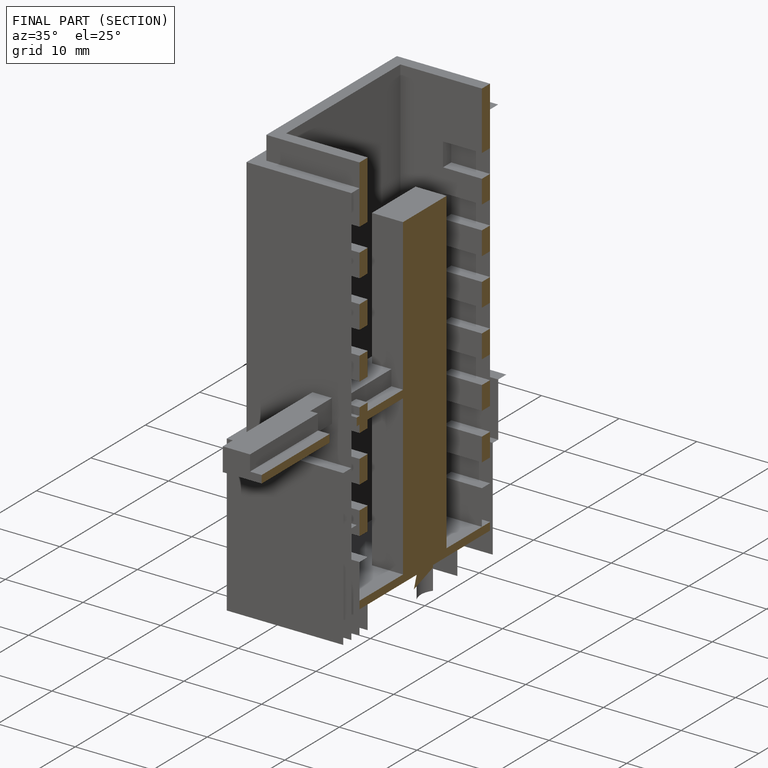
[diagram: finished part — half-section view (interior)]
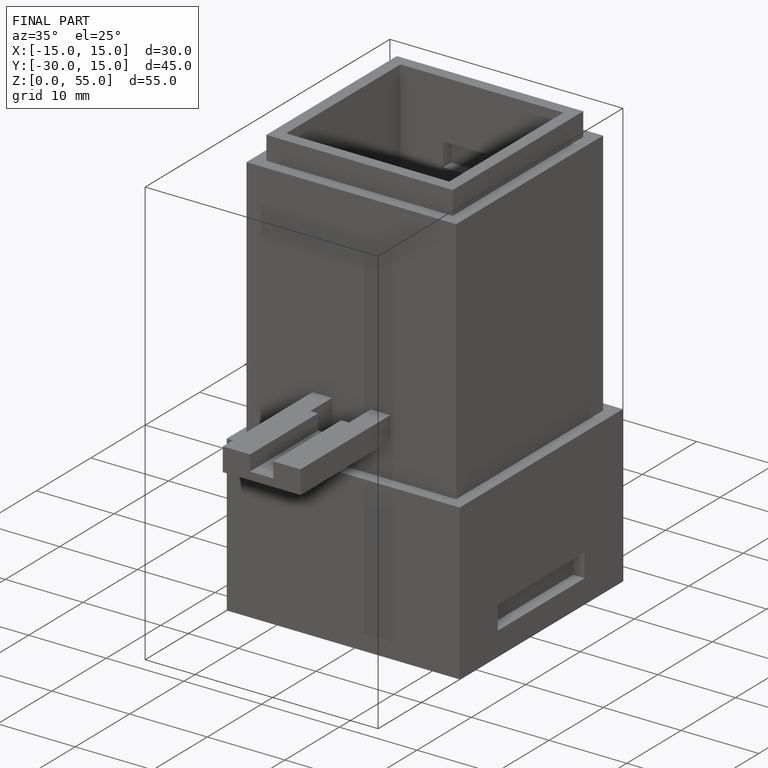
[diagram: finished part — iso view with bounding-box wireframe]
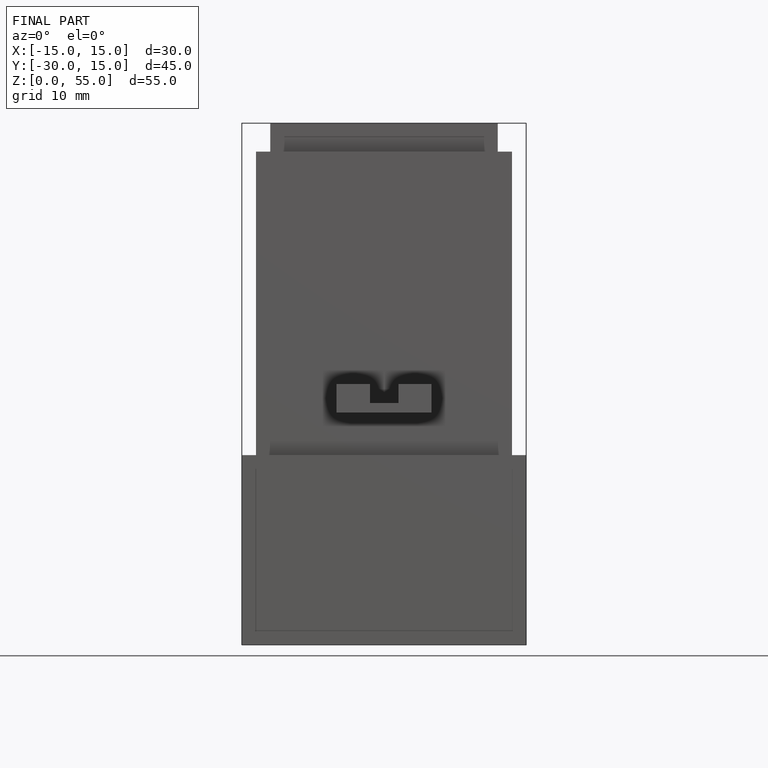
[diagram: finished part — front view with bounding-box wireframe]
